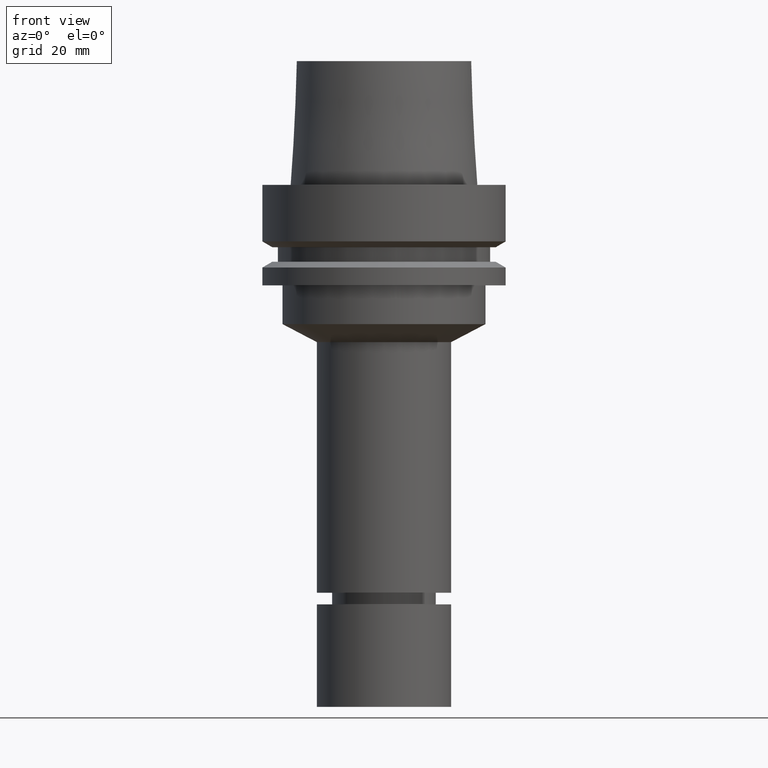
[diagram: clean part render]
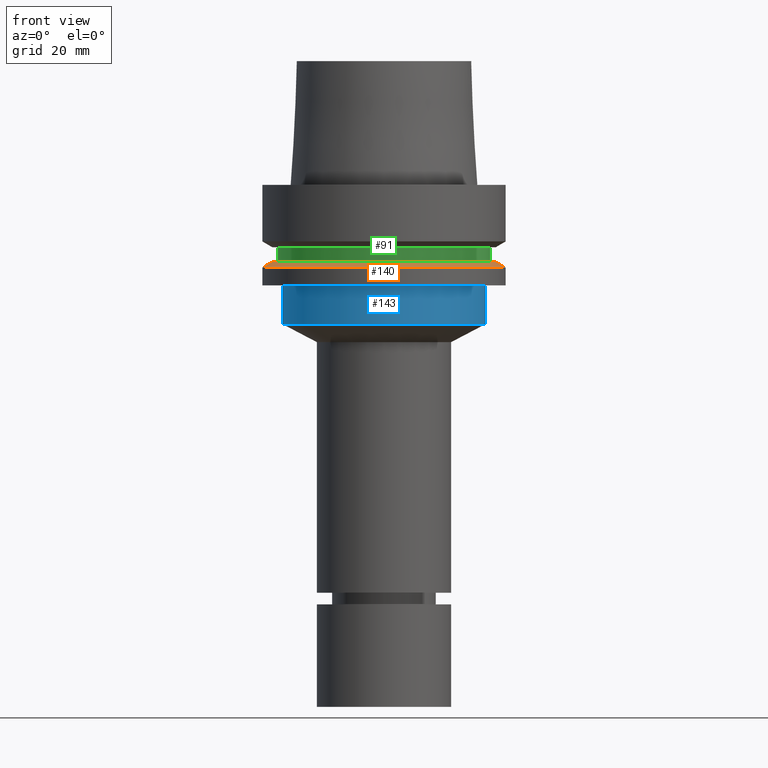
[diagram: same view with three faces highlighted in distinct colors, each labeled with its STEP entity id]
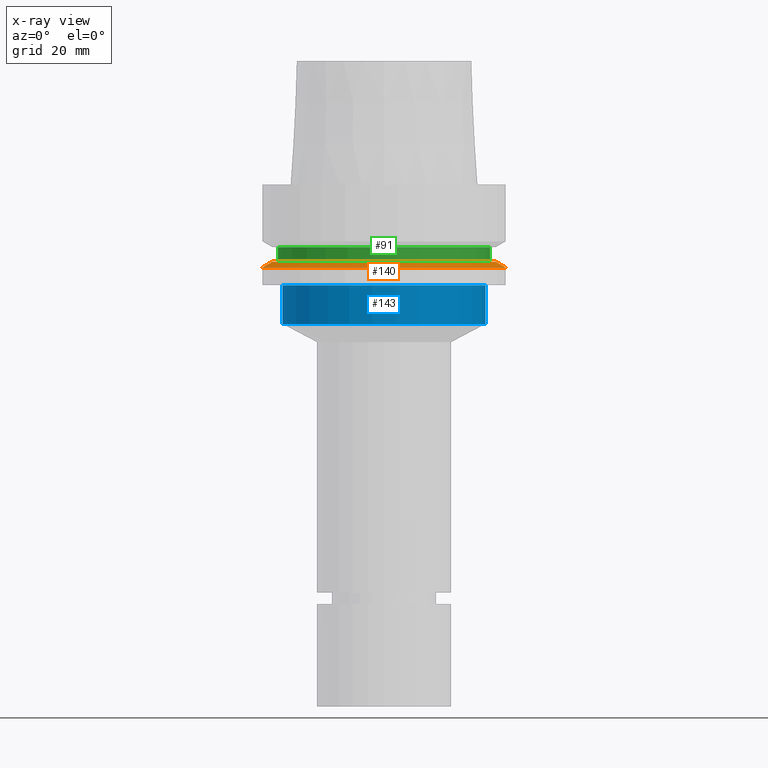
[diagram: x-ray of the same camera — body ghosted, the three highlighted faces saturated]
A machine part, front view with three faces highlighted in distinct colors.
The next image is the same camera in x-ray (body ghosted, the three faces saturated) — at least one of them is partly hidden behind the body in this view.
Their STEP definitions:

[orange] entity #140 — the highlighted conical surface has half-angle 60 deg.
#121=EDGE_CURVE('Unnamed[1]',#279,#279,#280,.T.);
#140=ADVANCED_FACE('Unnamed[1]',(#309,#310),#311,.T.);
#184=EDGE_CURVE('Unnamed[1]',#377,#377,#378,.T.);
#279=VERTEX_POINT('',#486);
#280=CIRCLE('',#487,28.8975952641919);
#309=FACE_BOUND('',#523,.T.);
#310=FACE_BOUND('',#524,.T.);
#311=CONICAL_SURFACE('',#525,30.1987976320959,1.04719755119657);
#377=VERTEX_POINT('',#607);
#378=CIRCLE('',#608,31.5);
#486=CARTESIAN_POINT('',(1.21699275665268E-015,28.8975952641919,-19.875));
#487=AXIS2_PLACEMENT_3D('',#701,#702,#703);
#523=EDGE_LOOP('',(#735));
#524=EDGE_LOOP('',(#736));
#525=AXIS2_PLACEMENT_3D('',#737,#738,#739);
#607=CARTESIAN_POINT('',(1.30899429078397E-015,31.5,-21.3774990747592));
#608=AXIS2_PLACEMENT_3D('',#811,#812,#813);
#701=CARTESIAN_POINT('',(1.21699275665268E-015,2.43398551330536E-015,-19.875));
#702=DIRECTION('',(-6.12323399573677E-017,-1.22464679914735E-016,1.0));
#703=DIRECTION('',(-1.23259516440783E-032,1.0,1.22464679914735E-016));
#735=ORIENTED_EDGE('',*,*,#121,.F.);
#736=ORIENTED_EDGE('',*,*,#184,.T.);
#737=CARTESIAN_POINT('',(1.26299352371833E-015,2.52598704743665E-015,-20.6262495373796));
#738=DIRECTION('',(6.12323399573677E-017,1.22464679914735E-016,-1.0));
#739=DIRECTION('',(-1.23259516440783E-032,1.0,1.22464679914735E-016));
#811=CARTESIAN_POINT('',(1.30899429078397E-015,2.61798858156794E-015,-21.3774990747592));
#812=DIRECTION('',(-6.12323399573677E-017,-1.22464679914735E-016,1.0));
#813=DIRECTION('',(-1.23259516440783E-032,1.0,1.22464679914735E-016));

[blue] entity #143 — the highlighted cylindrical surface (bore or boss wall) has radius 26.3 mm, axis along (-0, -0, 1).
#115=EDGE_CURVE('Unnamed[1]',#270,#270,#271,.T.);
#143=ADVANCED_FACE('Unnamed[1]',(#314,#315),#316,.T.);
#164=EDGE_CURVE('Unnamed[1]',#348,#348,#349,.T.);
#270=VERTEX_POINT('',#474);
#271=CIRCLE('',#475,26.3);
#314=FACE_BOUND('',#529,.T.);
#315=FACE_BOUND('',#530,.T.);
#316=CYLINDRICAL_SURFACE('',#531,26.3);
#348=VERTEX_POINT('',#571);
#349=CIRCLE('',#572,26.3);
#474=CARTESIAN_POINT('',(1.59204083889154E-015,26.3,-25.9999999999997));
#475=AXIS2_PLACEMENT_3D('',#692,#693,#694);
#529=EDGE_LOOP('',(#741));
#530=EDGE_LOOP('',(#742));
#531=AXIS2_PLACEMENT_3D('',#743,#744,#745);
#571=CARTESIAN_POINT('',(2.20436423846525E-015,26.3,-36.0000000000003));
#572=AXIS2_PLACEMENT_3D('',#781,#782,#783);
#692=CARTESIAN_POINT('',(1.59204083889154E-015,3.18408167778308E-015,-25.9999999999997));
#693=DIRECTION('',(-6.12323399573677E-017,-1.22464679914735E-016,1.0));
#694=DIRECTION('',(-1.23259516440783E-032,1.0,1.22464679914735E-016));
#741=ORIENTED_EDGE('',*,*,#115,.F.);
#742=ORIENTED_EDGE('',*,*,#164,.T.);
#743=CARTESIAN_POINT('',(1.8982025386784E-015,3.79640507735679E-015,-31.0));
#744=DIRECTION('',(-6.12323399573677E-017,-1.22464679914735E-016,1.0));
#745=DIRECTION('',(-1.23259516440783E-032,1.0,1.22464679914735E-016));
#781=CARTESIAN_POINT('',(2.20436423846525E-015,4.40872847693051E-015,-36.0000000000003));
#782=DIRECTION('',(-6.12323399573677E-017,-1.22464679914735E-016,1.0));
#783=DIRECTION('',(-1.23259516440783E-032,1.0,1.22464679914735E-016));

[green] entity #91 — the highlighted cylindrical surface (bore or boss wall) has radius 27.5 mm, axis along (-0, -0, 1).
#91=ADVANCED_FACE('Unnamed[1]',(#234,#235),#236,.T.);
#126=EDGE_CURVE('Unnamed[1]',#287,#287,#288,.T.);
#186=EDGE_CURVE('Unnamed[1]',#380,#380,#381,.T.);
#234=FACE_BOUND('',#430,.T.);
#235=FACE_BOUND('',#431,.T.);
#236=CYLINDRICAL_SURFACE('',#432,27.4999999999994);
#287=VERTEX_POINT('',#496);
#288=CIRCLE('',#497,27.5);
#380=VERTEX_POINT('',#611);
#381=CIRCLE('',#612,27.4999999999989);
#430=EDGE_LOOP('',(#652));
#431=EDGE_LOOP('',(#653));
#432=AXIS2_PLACEMENT_3D('',#654,#655,#656);
#496=CARTESIAN_POINT('',(9.87371481812537E-016,27.5,-16.1249999999997));
#497=AXIS2_PLACEMENT_3D('',#710,#711,#712);
#611=CARTESIAN_POINT('',(1.21699275665276E-015,27.4999999999989,-19.8750000000013));
#612=AXIS2_PLACEMENT_3D('',#814,#815,#816);
#652=ORIENTED_EDGE('',*,*,#126,.F.);
#653=ORIENTED_EDGE('',*,*,#186,.T.);
#654=CARTESIAN_POINT('',(1.10218211923265E-015,2.2043642384653E-015,-18.0000000000005));
#655=DIRECTION('',(-6.12323399573677E-017,-1.22464679914735E-016,1.0));
#656=DIRECTION('',(-1.23259516440783E-032,1.0,1.22464679914735E-016));
#710=CARTESIAN_POINT('',(9.87371481812538E-016,1.97474296362508E-015,-16.1249999999997));
#711=DIRECTION('',(-6.12323399573677E-017,-1.22464679914735E-016,1.0));
#712=DIRECTION('',(-1.23259516440783E-032,1.0,1.22464679914735E-016));
#814=CARTESIAN_POINT('',(1.21699275665276E-015,2.43398551330552E-015,-19.8750000000013));
#815=DIRECTION('',(-6.12323399573677E-017,-1.22464679914735E-016,1.0));
#816=DIRECTION('',(-1.23259516440783E-032,1.0,1.22464679914735E-016));